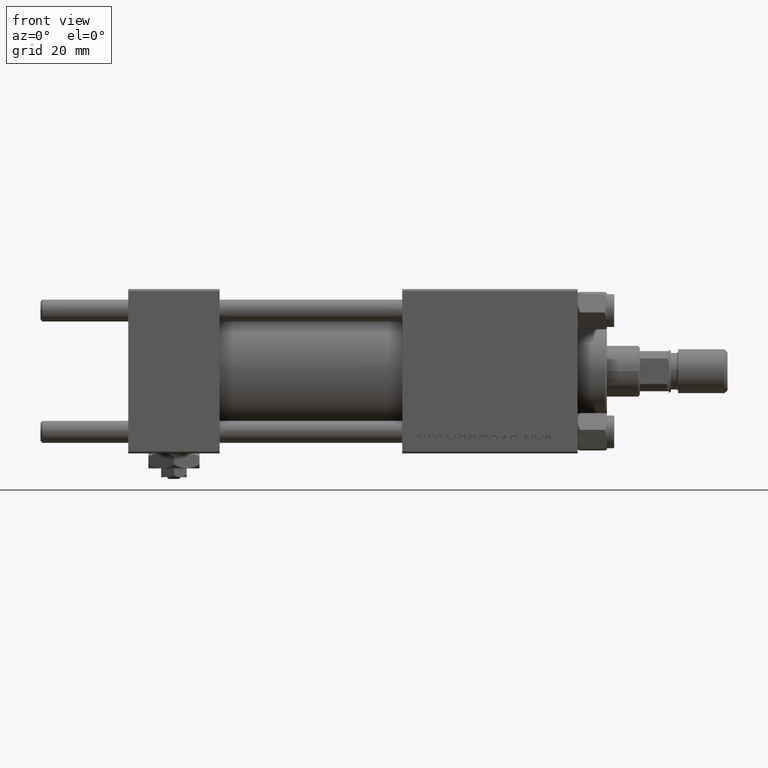
[diagram: clean part render]
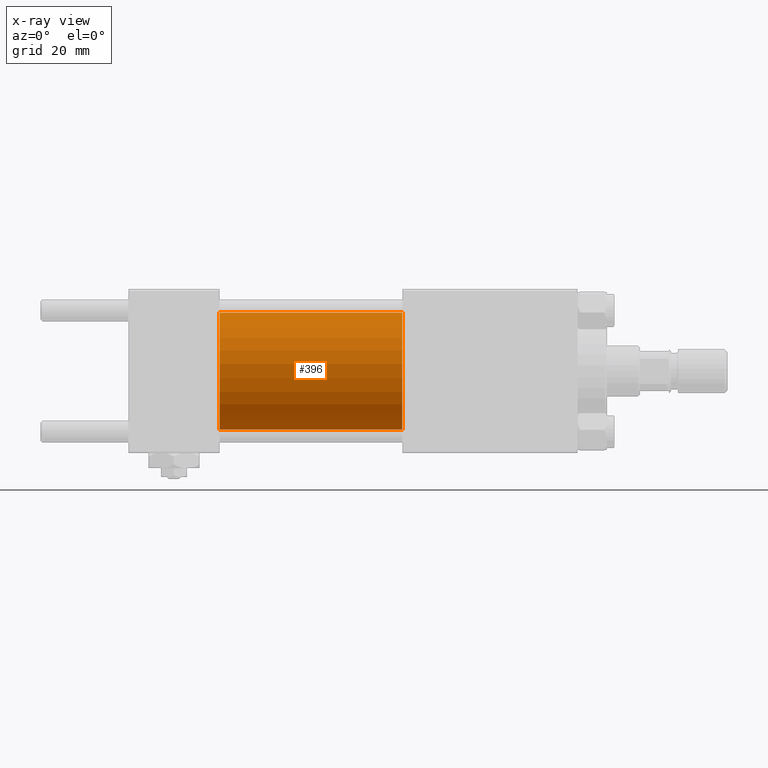
[diagram: x-ray — body ghosted, one internal face saturated and labeled with its STEP entity id]
A machine part, front view, then the same camera in x-ray: the body is ghosted and one INTERNAL B-rep face — a face not visible from any outside direction — is saturated and labeled: STEP entity #396.
In plain terms, the highlighted cylindrical surface (partial cylindrical patch) has radius 16 mm, axis along (-1, -0, -0).
Its self-contained STEP definition (entity closure, byte-faithful):
#162 = DIRECTION ( 'NONE',  ( 1.000000000000000000, 0.000000000000000000, 0.000000000000000000 ) ) ;
#396 = ADVANCED_FACE ( 'NONE', ( #10094 ), #3198, .F. ) ;
#1252 = DIRECTION ( 'NONE',  ( -1.000000000000000000, -0.000000000000000000, -0.000000000000000000 ) ) ;
#1472 = ORIENTED_EDGE ( 'NONE', *, *, #3337, .T. ) ;
#2412 = CARTESIAN_POINT ( 'NONE',  ( 75.00000000000001421, 0.000000000000000000, 0.000000000000000000 ) ) ;
#3198 = CYLINDRICAL_SURFACE ( 'NONE', #50868, 16.00000000000000000 ) ;
#3337 = EDGE_CURVE ( 'NONE', #44980, #21812, #19796, .T. ) ;
#4056 = EDGE_CURVE ( 'NONE', #36017, #29568, #18170, .T. ) ;
#4561 = CARTESIAN_POINT ( 'NONE',  ( 75.00000000000001421, 1.959434878635765131E-15, -16.00000000000000000 ) ) ;
#5733 = CARTESIAN_POINT ( 'NONE',  ( 75.00000000000001421, 0.000000000000000000, 16.00000000000000000 ) ) ;
#7533 = ORIENTED_EDGE ( 'NONE', *, *, #9404, .T. ) ;
#9314 = ORIENTED_EDGE ( 'NONE', *, *, #4056, .F. ) ;
#9404 = EDGE_CURVE ( 'NONE', #21812, #29568, #37936, .T. ) ;
#9665 = CARTESIAN_POINT ( 'NONE',  ( 75.00000000000001421, 1.959434878635765131E-15, -16.00000000000000000 ) ) ;
#10094 = FACE_OUTER_BOUND ( 'NONE', #44732, .T. ) ;
#10269 = CARTESIAN_POINT ( 'NONE',  ( 25.00000000000000000, 1.959434878635765131E-15, -16.00000000000000000 ) ) ;
#12731 = CARTESIAN_POINT ( 'NONE',  ( 25.00000000000000000, 0.000000000000000000, 16.00000000000000000 ) ) ;
#17320 = AXIS2_PLACEMENT_3D ( 'NONE', #24801, #17657, #21620 ) ;
#17657 = DIRECTION ( 'NONE',  ( 1.000000000000000000, 0.000000000000000000, 0.000000000000000000 ) ) ;
#18170 = CIRCLE ( 'NONE', #17320, 16.00000000000000000 ) ;
#19796 = CIRCLE ( 'NONE', #49280, 16.00000000000000000 ) ;
#21620 = DIRECTION ( 'NONE',  ( 0.000000000000000000, 0.000000000000000000, -1.000000000000000000 ) ) ;
#21812 = VERTEX_POINT ( 'NONE', #4561 ) ;
#22065 = EDGE_CURVE ( 'NONE', #44980, #36017, #48263, .T. ) ;
#24801 = CARTESIAN_POINT ( 'NONE',  ( 25.00000000000000000, 0.000000000000000000, 0.000000000000000000 ) ) ;
#25946 = VECTOR ( 'NONE', #37411, 1000.000000000000000 ) ;
#29568 = VERTEX_POINT ( 'NONE', #10269 ) ;
#32179 = ORIENTED_EDGE ( 'NONE', *, *, #22065, .F. ) ;
#34139 = CARTESIAN_POINT ( 'NONE',  ( 75.00000000000001421, 0.000000000000000000, 0.000000000000000000 ) ) ;
#36017 = VERTEX_POINT ( 'NONE', #12731 ) ;
#37411 = DIRECTION ( 'NONE',  ( -1.000000000000000000, -0.000000000000000000, -0.000000000000000000 ) ) ;
#37936 = LINE ( 'NONE', #9665, #25946 ) ;
#42025 = VECTOR ( 'NONE', #1252, 1000.000000000000000 ) ;
#44526 = DIRECTION ( 'NONE',  ( 0.000000000000000000, 0.000000000000000000, -1.000000000000000000 ) ) ;
#44732 = EDGE_LOOP ( 'NONE', ( #1472, #7533, #9314, #32179 ) ) ;
#44980 = VERTEX_POINT ( 'NONE', #50331 ) ;
#46510 = DIRECTION ( 'NONE',  ( 0.000000000000000000, 0.000000000000000000, 1.000000000000000000 ) ) ;
#48263 = LINE ( 'NONE', #5733, #42025 ) ;
#49280 = AXIS2_PLACEMENT_3D ( 'NONE', #34139, #162, #44526 ) ;
#50331 = CARTESIAN_POINT ( 'NONE',  ( 75.00000000000001421, 0.000000000000000000, 16.00000000000000000 ) ) ;
#50868 = AXIS2_PLACEMENT_3D ( 'NONE', #2412, #51503, #46510 ) ;
#51503 = DIRECTION ( 'NONE',  ( -1.000000000000000000, -0.000000000000000000, -0.000000000000000000 ) ) ;